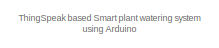
[diagram: root canvas - part 1/3, top center region]
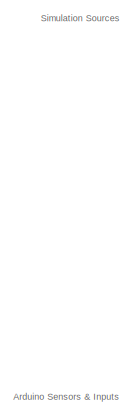
[diagram: root canvas - part 2/3, top left region]
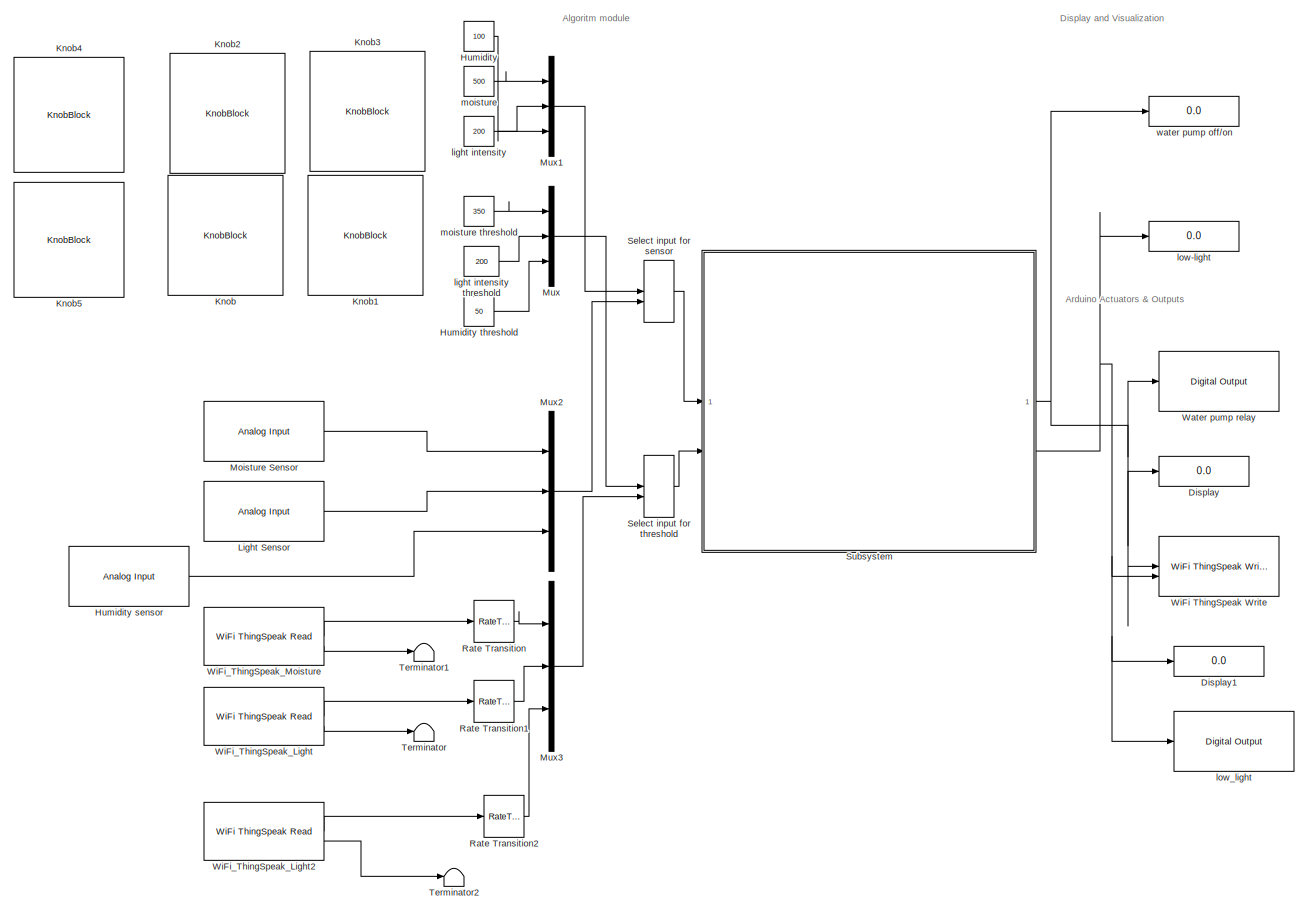
[diagram: root canvas - part 3/3, most of the canvas]
MODEL slx_1a9d7b09229c
KIND model
CONFIG AbsTol = auto
CONFIG EnableMultiTasking = on
CONFIG FixedStep = auto
CONFIG MaxStep = auto
CONFIG MinStep = auto
CONFIG RelTol = 1e-3
CONFIG SampleTimeConstraint = Unconstrained
CONFIG SolverName = FixedStepAuto
CONFIG StartTime = 0.0
CONFIG StopTime = 30
BLOCK [Constant]  moisture threshold
  OutDataTypeStr = uint16
  SampleTime = 2
  Value = 350
BLOCK [Display] Display
  Decimation = 1
BLOCK [Display] Display1
  Decimation = 1
BLOCK [Constant] Humidity
  OutDataTypeStr = uint16
  Value = 100
BLOCK [Reference] Humidity sensor  REF=arduinolib/Analog Input
  SourceBlock = arduinolib/Analog Input
  SourceType = Arduino Analog Input
BLOCK [Constant] Humidity threshold
  OutDataTypeStr = uint16
  Value = 50
BLOCK [KnobBlock] Knob
  ScaleMax = 1023
  ScaleMin = 100
BLOCK [KnobBlock] Knob1
  ScaleMax = 1023
  ScaleMin = 10
BLOCK [KnobBlock] Knob2
  ScaleMax = 1023
  ScaleMin = 100
BLOCK [KnobBlock] Knob3
  ScaleMax = 1023
  ScaleMin = 10
BLOCK [KnobBlock] Knob4
BLOCK [KnobBlock] Knob5
BLOCK [Reference] Light Sensor  REF=arduinolib/Analog Input
  SourceBlock = arduinolib/Analog Input
  SourceType = Arduino Analog Input
BLOCK [Reference] Moisture Sensor  REF=arduinolib/Analog Input
  SourceBlock = arduinolib/Analog Input
  SourceType = Arduino Analog Input
BLOCK [Mux] Mux
  DisplayOption = bar
  Inputs = 3
BLOCK [Mux] Mux1
  DisplayOption = bar
  Inputs = 3
BLOCK [Mux] Mux2
  DisplayOption = bar
  Inputs = 3
BLOCK [Mux] Mux3
  DisplayOption = bar
  Inputs = 3
BLOCK [RateTransition] Rate Transition
  OutPortSampleTime = 2
BLOCK [RateTransition] Rate Transition1
  OutPortSampleTime = 2
BLOCK [RateTransition] Rate Transition2
  OutPortSampleTime = 2
BLOCK [ManualSwitch] Select input for sensor
BLOCK [ManualSwitch] Select input for threshold
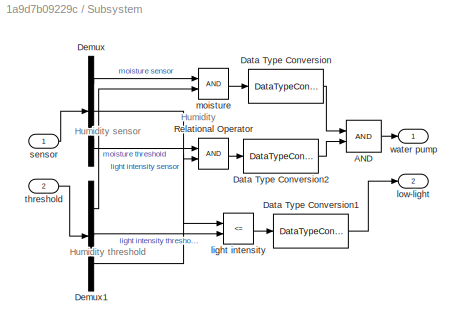
BLOCK [SubSystem] Subsystem
BLOCK [Logic] Subsystem/AND
  AllPortsSameDT = off
  IconShape = distinctive
  OutDataTypeStr = boolean
BLOCK [DataTypeConversion] Subsystem/Data Type Conversion
  OutDataTypeStr = uint8
  RndMeth = Floor
  SaturateOnIntegerOverflow = off
BLOCK [DataTypeConversion] Subsystem/Data Type Conversion1
  OutDataTypeStr = uint8
  RndMeth = Floor
  SaturateOnIntegerOverflow = off
BLOCK [DataTypeConversion] Subsystem/Data Type Conversion2
  OutDataTypeStr = uint8
  RndMeth = Floor
  SaturateOnIntegerOverflow = off
BLOCK [Demux] Subsystem/Demux
  Outputs = 3
BLOCK [Demux] Subsystem/Demux1
  Outputs = 3
BLOCK [RelationalOperator] Subsystem/Relational Operator
  InputSameDT = off
  OutDataTypeStr = boolean
  RndMeth = Simplest
BLOCK [RelationalOperator] Subsystem/light intensity 
  InputSameDT = off
  NameLocation = top
  Operator = <=
  OutDataTypeStr = boolean
  RndMeth = Simplest
BLOCK [Outport] Subsystem/low-light
  Port = 2
  VectorParamsAs1DForOutWhenUnconnected = off
BLOCK [RelationalOperator] Subsystem/moisture 
  InputSameDT = off
  NameLocation = top
  OutDataTypeStr = boolean
  RndMeth = Simplest
BLOCK [Inport] Subsystem/sensor
BLOCK [Inport] Subsystem/threshold
  Port = 2
BLOCK [Outport] Subsystem/water pump
  VectorParamsAs1DForOutWhenUnconnected = off
BLOCK [Terminator] Terminator
BLOCK [Terminator] Terminator1
BLOCK [Terminator] Terminator2
BLOCK [Reference] Water pump relay  REF=arduinolib/Digital Output
  SourceBlock = arduinolib/Digital Output
  SourceType = Arduino Digital Output
BLOCK [Reference] WiFi ThingSpeak Write  REF=arduinowifilib/WiFi ThingSpeak Write
  SourceBlock = arduinowifilib/WiFi ThingSpeak Write
  SourceType = WiFi ThingSpeak Write
BLOCK [Reference] WiFi_ThingSpeak_Light  REF=arduinowifilib/WiFi ThingSpeak Read
  SourceBlock = arduinowifilib/WiFi ThingSpeak Read
  SourceType = WiFi ThingSpeak Read
BLOCK [Reference] WiFi_ThingSpeak_Light2  REF=arduinowifilib/WiFi ThingSpeak Read
  SourceBlock = arduinowifilib/WiFi ThingSpeak Read
  SourceType = WiFi ThingSpeak Read
BLOCK [Reference] WiFi_ThingSpeak_Moisture   REF=arduinowifilib/WiFi ThingSpeak Read
  SourceBlock = arduinowifilib/WiFi ThingSpeak Read
  SourceType = WiFi ThingSpeak Read
BLOCK [Constant] light intensity 
  OutDataTypeStr = uint16
  SampleTime = 2
  Value = 200
BLOCK [Constant] light intensity threshold
  OutDataTypeStr = uint16
  SampleTime = 2
  Value = 200
BLOCK [Display] low-light
  Decimation = 1
BLOCK [Reference] low_light  REF=arduinolib/Digital Output
  SourceBlock = arduinolib/Digital Output
  SourceType = Arduino Digital Output
BLOCK [Constant] moisture
  OutDataTypeStr = uint16
  SampleTime = 2
  Value = 500
BLOCK [Display] water pump off//on
  Decimation = 1
ANNOTATION (root): Arduino Sensors & Inputs
ANNOTATION (root): Algoritm module
ANNOTATION (root): Arduino Actuators & Outputs
ANNOTATION (root): Display and Visualization
ANNOTATION (root): Simulation Sources
ANNOTATION (root): ThingSpeak based Smart plant watering system using Arduino
ANNOTATION Subsystem: Humidity
ANNOTATION Subsystem: Humidity sensor
ANNOTATION Subsystem: Humidity threshold
LINE  moisture threshold:1 -> Mux:1
LINE Humidity sensor:1 -> Mux2:3
LINE Humidity threshold:1 -> Mux:3
LINE Humidity:1 -> Mux1:3
LINE Light Sensor:1 -> Mux2:2
LINE Moisture Sensor:1 -> Mux2:1
LINE Mux1:1 -> Select input for sensor:1
LINE Mux2:1 -> Select input for sensor:2
LINE Mux3:1 -> Select input for threshold:2
LINE Mux:1 -> Select input for threshold:1
LINE Rate Transition1:1 -> Mux3:2
LINE Rate Transition2:1 -> Mux3:3
LINE Rate Transition:1 -> Mux3:1
LINE Select input for sensor:1 -> Subsystem:1
LINE Select input for threshold:1 -> Subsystem:2
LINE Subsystem/AND:1 -> Subsystem/water pump:1
LINE Subsystem/Data Type Conversion1:1 -> Subsystem/low-light:1
LINE Subsystem/Data Type Conversion2:1 -> Subsystem/AND:2
LINE Subsystem/Data Type Conversion:1 -> Subsystem/AND:1
LINE Subsystem/Demux1:1 -> Subsystem/moisture :2
LINE Subsystem/Demux1:2 -> Subsystem/light intensity :2
LINE Subsystem/Demux1:3 -> Subsystem/Relational Operator:2
LINE Subsystem/Demux:1 -> Subsystem/moisture :1
LINE Subsystem/Demux:2 -> Subsystem/light intensity :1
LINE Subsystem/Demux:3 -> Subsystem/Relational Operator:1
LINE Subsystem/Relational Operator:1 -> Subsystem/Data Type Conversion2:1
LINE Subsystem/light intensity :1 -> Subsystem/Data Type Conversion1:1
LINE Subsystem/moisture :1 -> Subsystem/Data Type Conversion:1
LINE Subsystem/sensor:1 -> Subsystem/Demux:1
LINE Subsystem/threshold:1 -> Subsystem/Demux1:1
NET Subsystem:1 -> Display:1, Water pump relay:1, WiFi ThingSpeak Write:1, water pump off//on:1
NET Subsystem:2 -> Display1:1, WiFi ThingSpeak Write:2, low-light:1, low_light:1
LINE WiFi_ThingSpeak_Light2:1 -> Rate Transition2:1
LINE WiFi_ThingSpeak_Light2:2 -> Terminator2:1
LINE WiFi_ThingSpeak_Light:1 -> Rate Transition1:1
LINE WiFi_ThingSpeak_Light:2 -> Terminator:1
LINE WiFi_ThingSpeak_Moisture :1 -> Rate Transition:1
LINE WiFi_ThingSpeak_Moisture :2 -> Terminator1:1
LINE light intensity :1 -> Mux1:2
LINE light intensity threshold:1 -> Mux:2
LINE moisture:1 -> Mux1:1
note: NET lines group one-source signal fan-out (src -> all destinations, sorted); 1:1 wires keep LINE
